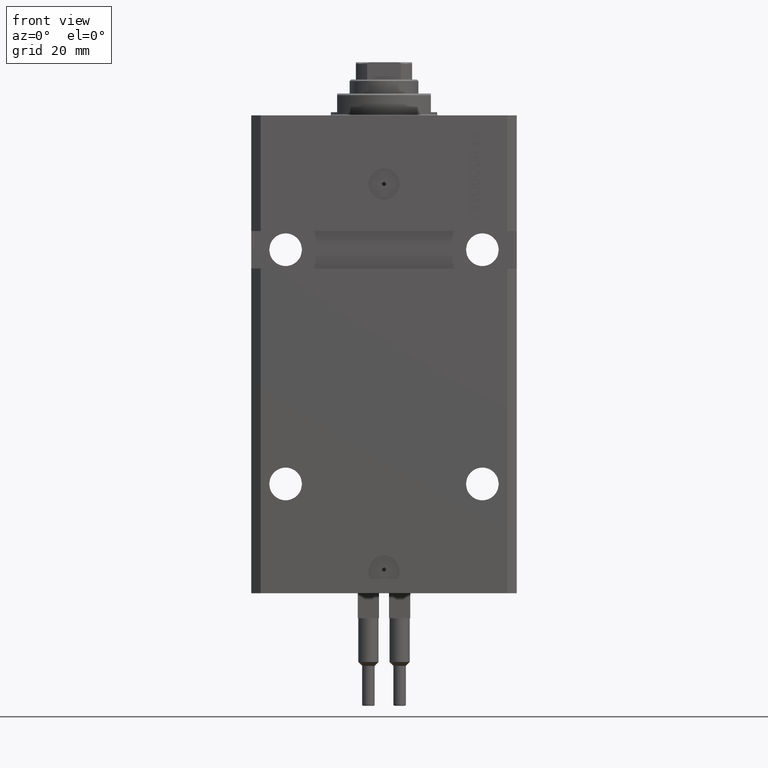
[diagram: clean part render]
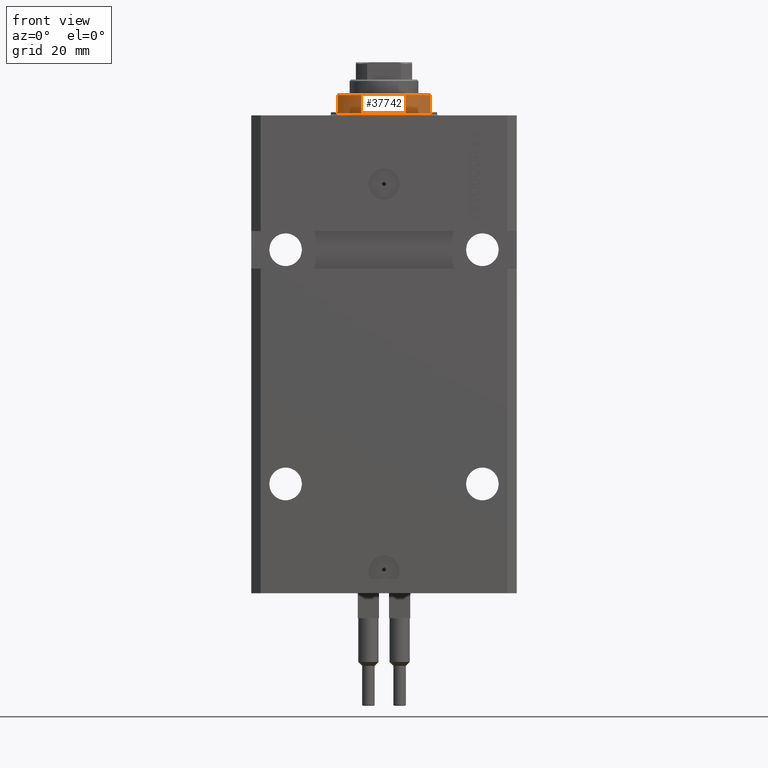
[diagram: same view with one face highlighted and labeled with its STEP entity id]
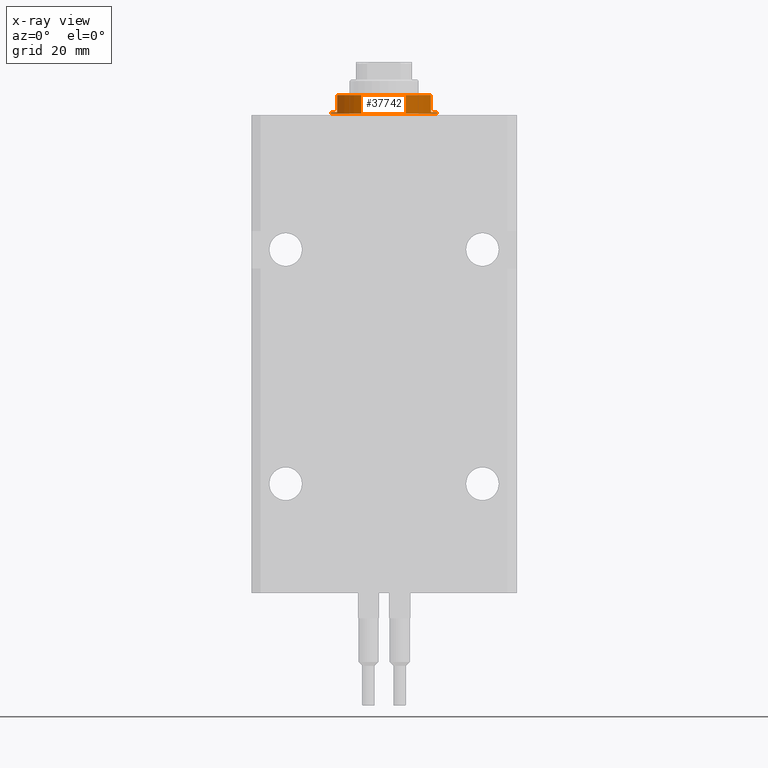
[diagram: x-ray of the same camera — body ghosted, the highlighted face saturated]
A machine part, front view. The second image highlights one B-rep face of the part: STEP entity #37742.
The next image is the same camera in x-ray: the body ghosted, the highlighted face saturated — about 0% of this face is hidden behind the body in this view.
In plain terms, the highlighted cylindrical surface (partial cylindrical patch) has radius 17 mm, axis along (0, 0, -1).
Its self-contained STEP definition (entity closure, byte-faithful):
#87 = CARTESIAN_POINT ( 'NONE',  ( -17.00000000000000000, 2.081899558550500280E-15, -7.000000000000000000 ) ) ;
#527 = DIRECTION ( 'NONE',  ( -1.000000000000000000, 0.000000000000000000, 0.000000000000000000 ) ) ;
#565 = ORIENTED_EDGE ( 'NONE', *, *, #24946, .T. ) ;
#842 = EDGE_CURVE ( 'NONE', #38932, #15438, #24550, .T. ) ;
#969 = EDGE_CURVE ( 'NONE', #1476, #4334, #3259, .T. ) ;
#1476 = VERTEX_POINT ( 'NONE', #11074 ) ;
#1785 = CARTESIAN_POINT ( 'NONE',  ( 0.000000000000000000, 0.000000000000000000, -1.000000000000000000 ) ) ;
#2340 = VERTEX_POINT ( 'NONE', #45066 ) ;
#3259 = CIRCLE ( 'NONE', #37214, 17.00000000000000000 ) ;
#3515 = DIRECTION ( 'NONE',  ( 0.000000000000000000, 0.000000000000000000, -1.000000000000000000 ) ) ;
#3757 = CIRCLE ( 'NONE', #44039, 17.00000000000000000 ) ;
#4334 = VERTEX_POINT ( 'NONE', #21825 ) ;
#5249 = DIRECTION ( 'NONE',  ( -1.000000000000000000, 0.000000000000000000, 0.000000000000000000 ) ) ;
#5450 = ORIENTED_EDGE ( 'NONE', *, *, #969, .F. ) ;
#7593 = EDGE_LOOP ( 'NONE', ( #38281, #5450, #19573, #12392, #13806, #34405, #45567, #565 ) ) ;
#7816 = CARTESIAN_POINT ( 'NONE',  ( 17.00000000000000000, 0.000000000000000000, -7.000000000000000000 ) ) ;
#7986 = DIRECTION ( 'NONE',  ( -0.000000000000000000, -0.000000000000000000, 1.000000000000000000 ) ) ;
#10128 = DIRECTION ( 'NONE',  ( -0.000000000000000000, -0.000000000000000000, 1.000000000000000000 ) ) ;
#11074 = CARTESIAN_POINT ( 'NONE',  ( -14.99999999999999645, -8.000000000000003553, -1.000000000000000000 ) ) ;
#11093 = CARTESIAN_POINT ( 'NONE',  ( 17.00000000000000000, 0.000000000000000000, -0.4999999999999995559 ) ) ;
#11097 = CYLINDRICAL_SURFACE ( 'NONE', #38150, 17.00000000000000000 ) ;
#12159 = DIRECTION ( 'NONE',  ( -1.000000000000000000, 0.000000000000000000, 0.000000000000000000 ) ) ;
#12392 = ORIENTED_EDGE ( 'NONE', *, *, #842, .T. ) ;
#12984 = VECTOR ( 'NONE', #36624, 1000.000000000000000 ) ;
#13147 = CARTESIAN_POINT ( 'NONE',  ( 0.000000000000000000, 0.000000000000000000, -0.4999999999999995559 ) ) ;
#13806 = ORIENTED_EDGE ( 'NONE', *, *, #32115, .F. ) ;
#13912 = EDGE_CURVE ( 'NONE', #1476, #38932, #32465, .T. ) ;
#14338 = LINE ( 'NONE', #33891, #12984 ) ;
#14806 = FACE_OUTER_BOUND ( 'NONE', #7593, .T. ) ;
#15438 = VERTEX_POINT ( 'NONE', #26845 ) ;
#15698 = LINE ( 'NONE', #7816, #23345 ) ;
#17306 = VECTOR ( 'NONE', #21071, 1000.000000000000000 ) ;
#18803 = CARTESIAN_POINT ( 'NONE',  ( 0.000000000000000000, 0.000000000000000000, -1.000000000000000000 ) ) ;
#19573 = ORIENTED_EDGE ( 'NONE', *, *, #13912, .T. ) ;
#21071 = DIRECTION ( 'NONE',  ( 0.000000000000000000, 0.000000000000000000, -1.000000000000000000 ) ) ;
#21825 = CARTESIAN_POINT ( 'NONE',  ( -17.00000000000000000, 2.081899558550500280E-15, -1.000000000000000000 ) ) ;
#22233 = EDGE_CURVE ( 'NONE', #4334, #28546, #33981, .T. ) ;
#23045 = VECTOR ( 'NONE', #7986, 1000.000000000000000 ) ;
#23345 = VECTOR ( 'NONE', #34286, 1000.000000000000000 ) ;
#24526 = DIRECTION ( 'NONE',  ( 1.000000000000000000, 0.000000000000000000, 0.000000000000000000 ) ) ;
#24550 = CIRCLE ( 'NONE', #34839, 17.00000000000000000 ) ;
#24946 = EDGE_CURVE ( 'NONE', #26344, #28546, #25521, .T. ) ;
#25046 = CARTESIAN_POINT ( 'NONE',  ( -15.00000000000000000, -8.000000000000001776, -7.000000000000000000 ) ) ;
#25223 = DIRECTION ( 'NONE',  ( 1.000000000000000000, 0.000000000000000000, 0.000000000000000000 ) ) ;
#25521 = CIRCLE ( 'NONE', #30248, 17.00000000000000000 ) ;
#26344 = VERTEX_POINT ( 'NONE', #11093 ) ;
#26845 = CARTESIAN_POINT ( 'NONE',  ( 15.00000000000000000, -8.000000000000001776, -6.500000000000013323 ) ) ;
#28546 = VERTEX_POINT ( 'NONE', #37566 ) ;
#30248 = AXIS2_PLACEMENT_3D ( 'NONE', #13147, #43342, #24526 ) ;
#31702 = DIRECTION ( 'NONE',  ( 0.000000000000000000, 0.000000000000000000, -1.000000000000000000 ) ) ;
#32115 = EDGE_CURVE ( 'NONE', #35948, #15438, #14338, .T. ) ;
#32465 = LINE ( 'NONE', #25046, #17306 ) ;
#33859 = CARTESIAN_POINT ( 'NONE',  ( -15.00000000000000000, -8.000000000000001776, -6.500000000000014211 ) ) ;
#33891 = CARTESIAN_POINT ( 'NONE',  ( 15.00000000000000000, -8.000000000000001776, -7.000000000000000000 ) ) ;
#33981 = LINE ( 'NONE', #87, #23045 ) ;
#34286 = DIRECTION ( 'NONE',  ( -0.000000000000000000, -0.000000000000000000, 1.000000000000000000 ) ) ;
#34405 = ORIENTED_EDGE ( 'NONE', *, *, #35345, .F. ) ;
#34839 = AXIS2_PLACEMENT_3D ( 'NONE', #46073, #41635, #12159 ) ;
#35345 = EDGE_CURVE ( 'NONE', #2340, #35948, #3757, .T. ) ;
#35948 = VERTEX_POINT ( 'NONE', #48653 ) ;
#36624 = DIRECTION ( 'NONE',  ( 0.000000000000000000, 0.000000000000000000, -1.000000000000000000 ) ) ;
#37214 = AXIS2_PLACEMENT_3D ( 'NONE', #1785, #31702, #5249 ) ;
#37566 = CARTESIAN_POINT ( 'NONE',  ( -17.00000000000000000, 2.081899558550500280E-15, -0.4999999999999995559 ) ) ;
#37570 = CARTESIAN_POINT ( 'NONE',  ( 0.000000000000000000, 0.000000000000000000, -7.000000000000000000 ) ) ;
#37742 = ADVANCED_FACE ( 'NONE', ( #14806 ), #11097, .T. ) ;
#38150 = AXIS2_PLACEMENT_3D ( 'NONE', #37570, #10128, #25223 ) ;
#38281 = ORIENTED_EDGE ( 'NONE', *, *, #22233, .F. ) ;
#38932 = VERTEX_POINT ( 'NONE', #33859 ) ;
#41635 = DIRECTION ( 'NONE',  ( 0.000000000000000000, 0.000000000000000000, 1.000000000000000000 ) ) ;
#43342 = DIRECTION ( 'NONE',  ( -0.000000000000000000, -0.000000000000000000, -1.000000000000000000 ) ) ;
#44039 = AXIS2_PLACEMENT_3D ( 'NONE', #18803, #3515, #527 ) ;
#44301 = EDGE_CURVE ( 'NONE', #2340, #26344, #15698, .T. ) ;
#45066 = CARTESIAN_POINT ( 'NONE',  ( 17.00000000000000000, 0.000000000000000000, -1.000000000000000000 ) ) ;
#45567 = ORIENTED_EDGE ( 'NONE', *, *, #44301, .T. ) ;
#46073 = CARTESIAN_POINT ( 'NONE',  ( 0.000000000000000000, 0.000000000000000000, -6.500000000000013323 ) ) ;
#48653 = CARTESIAN_POINT ( 'NONE',  ( 14.99999999999999645, -8.000000000000003553, -1.000000000000000000 ) ) ;